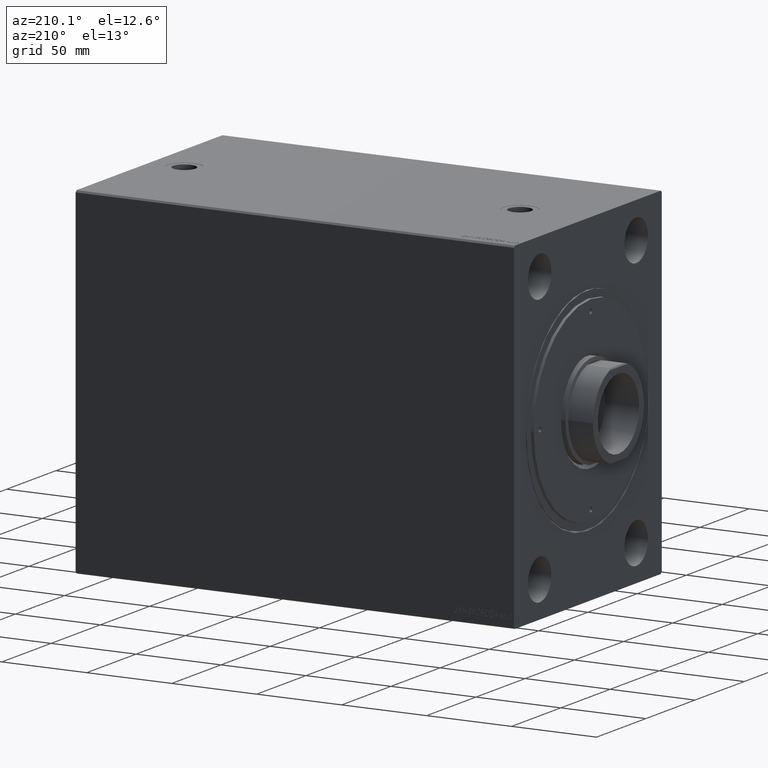
[diagram: clean part render]
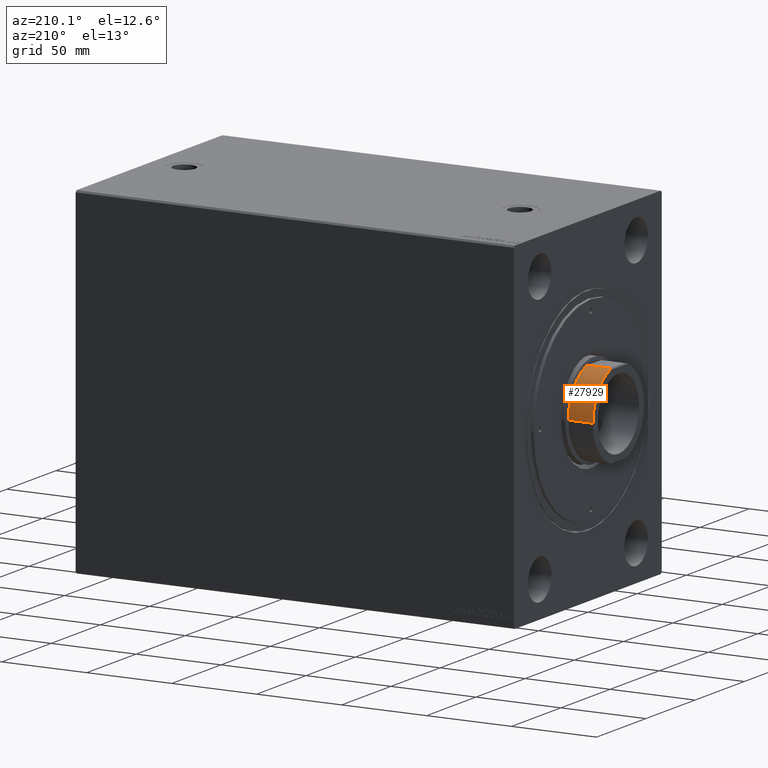
[diagram: same view with one face highlighted and labeled with its STEP entity id]
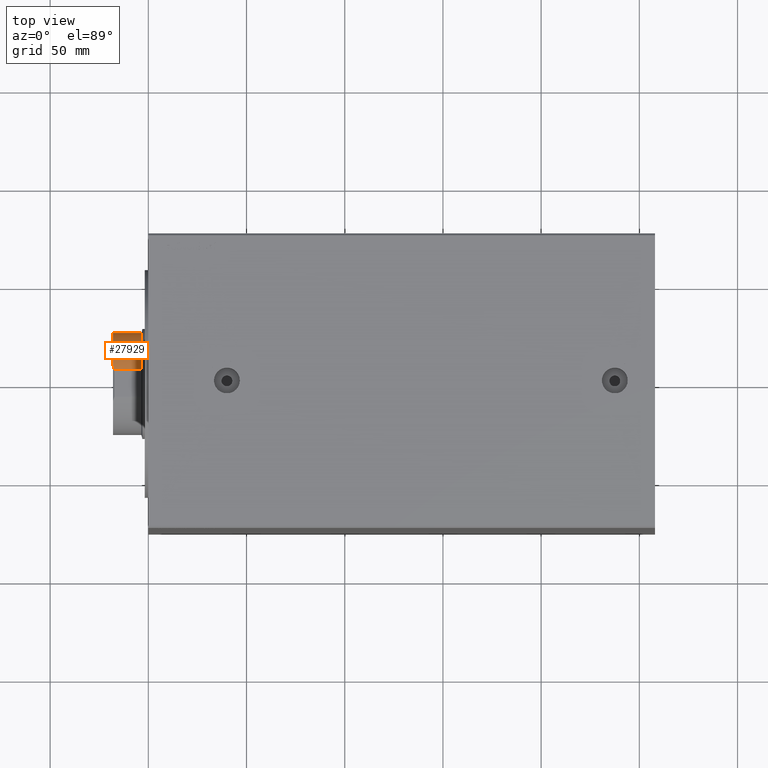
[diagram: same view with one face highlighted and labeled with its STEP entity id]
A machine part, auxiliary view. The second image highlights one B-rep face of the part: STEP entity #27929.
A second angle (top view) of the same face is appended — the face is thin or edge-on in the first view.
In plain terms, the highlighted cylindrical surface (partial cylindrical patch) has radius 25.96 mm, axis along (-1, 0, 0).
Its self-contained STEP definition (entity closure, byte-faithful):
#500 = DIRECTION ( 'NONE',  ( 0.000000000000000000, -1.000000000000000000, 0.000000000000000000 ) ) ;
#1282 = FACE_OUTER_BOUND ( 'NONE', #31531, .T. ) ;
#2404 = EDGE_CURVE ( 'NONE', #22034, #29642, #37133, .T. ) ;
#2987 = CARTESIAN_POINT ( 'NONE',  ( -25.00000000000000000, -6.994397758206214455, 173.0000000000000000 ) ) ;
#5614 = CIRCLE ( 'NONE', #32165, 25.95999999999999375 ) ;
#5811 = CARTESIAN_POINT ( 'NONE',  ( -25.00000000000000000, -6.994397758206214455, 172.2899999999999920 ) ) ;
#5882 = CARTESIAN_POINT ( 'NONE',  ( -24.29000000000001336, -9.160649540289131920, 173.0000000000000000 ) ) ;
#6165 = CIRCLE ( 'NONE', #19037, 25.95999999999999375 ) ;
#6536 = ORIENTED_EDGE ( 'NONE', *, *, #14281, .T. ) ;
#9171 = AXIS2_PLACEMENT_3D ( 'NONE', #18963, #36053, #25946 ) ;
#11070 = EDGE_CURVE ( 'NONE', #28275, #22034, #20696, .T. ) ;
#12397 = CARTESIAN_POINT ( 'NONE',  ( -24.29000000000001336, -9.160649540289131920, 173.0000000000000000 ) ) ;
#14281 = EDGE_CURVE ( 'NONE', #28657, #36217, #29801, .T. ) ;
#15493 = VECTOR ( 'NONE', #27112, 1000.000000000000000 ) ;
#16877 = CARTESIAN_POINT ( 'NONE',  ( -25.00000000000000000, -6.994397758206214455, 172.2899999999999920 ) ) ;
#17538 = CARTESIAN_POINT ( 'NONE',  ( 0.000000000000000000, -2.623210675813166970E-14, 158.5000000000000000 ) ) ;
#18963 = CARTESIAN_POINT ( 'NONE',  ( 0.000000000000000000, -2.863188939531091061E-14, 173.0000000000000000 ) ) ;
#19037 = AXIS2_PLACEMENT_3D ( 'NONE', #17538, #31237, #500 ) ;
#19759 = DIRECTION ( 'NONE',  ( -0.000000000000000000, -1.655022508399474550E-16, 1.000000000000000000 ) ) ;
#20139 = CARTESIAN_POINT ( 'NONE',  ( 0.000000000000000000, -25.96000000000002572, 173.0000000000000000 ) ) ;
#20146 = CARTESIAN_POINT ( 'NONE',  ( 3.304097064099558194E-15, -25.96000000000002217, 158.5000000000000000 ) ) ;
#20261 = DIRECTION ( 'NONE',  ( 0.000000000000000000, 1.655022508399474550E-16, -1.000000000000000000 ) ) ;
#20696 =( BOUNDED_CURVE ( )  B_SPLINE_CURVE ( 3, ( #5882, #30148, #37339, #16877 ),
 .UNSPECIFIED., .F., .F. ) 
 B_SPLINE_CURVE_WITH_KNOTS ( ( 4, 4 ),
 ( 2.780950061814777552, 2.868791760877351216 ),
 .UNSPECIFIED. ) 
 CURVE ( )  GEOMETRIC_REPRESENTATION_ITEM ( )  RATIONAL_B_SPLINE_CURVE ( ( 1.000000000000000000, 0.9993570896854834240, 0.9993570896854834240, 1.000000000000000000 ) ) 
 REPRESENTATION_ITEM ( '' )  );
#22034 = VERTEX_POINT ( 'NONE', #5811 ) ;
#25143 = CARTESIAN_POINT ( 'NONE',  ( 0.000000000000000000, -25.96000000000002217, 173.0000000000000000 ) ) ;
#25946 = DIRECTION ( 'NONE',  ( 0.000000000000000000, -1.000000000000000000, 0.000000000000000000 ) ) ;
#26114 = ORIENTED_EDGE ( 'NONE', *, *, #28432, .F. ) ;
#27112 = DIRECTION ( 'NONE',  ( -0.000000000000000000, -1.655022508399474550E-16, 1.000000000000000000 ) ) ;
#27929 = ADVANCED_FACE ( 'NONE', ( #1282 ), #43021, .T. ) ;
#28275 = VERTEX_POINT ( 'NONE', #12397 ) ;
#28355 = ORIENTED_EDGE ( 'NONE', *, *, #41578, .T. ) ;
#28432 = EDGE_CURVE ( 'NONE', #28275, #36217, #5614, .T. ) ;
#28657 = VERTEX_POINT ( 'NONE', #20146 ) ;
#29642 = VERTEX_POINT ( 'NONE', #34740 ) ;
#29801 = LINE ( 'NONE', #20139, #15493 ) ;
#30148 = CARTESIAN_POINT ( 'NONE',  ( -24.55831528023093924, -8.449195824245833819, 172.7316847197691061 ) ) ;
#30316 = CARTESIAN_POINT ( 'NONE',  ( 0.000000000000000000, -2.863188939531091061E-14, 173.0000000000000000 ) ) ;
#30752 = ORIENTED_EDGE ( 'NONE', *, *, #2404, .T. ) ;
#31237 = DIRECTION ( 'NONE',  ( -0.000000000000000000, -1.655022508399474550E-16, 1.000000000000000000 ) ) ;
#31531 = EDGE_LOOP ( 'NONE', ( #28355, #6536, #26114, #43296, #30752 ) ) ;
#32165 = AXIS2_PLACEMENT_3D ( 'NONE', #30316, #19759, #36843 ) ;
#34740 = CARTESIAN_POINT ( 'NONE',  ( -25.00000000000000000, -6.994397758206211790, 158.4999999999999716 ) ) ;
#36053 = DIRECTION ( 'NONE',  ( -0.000000000000000000, -1.655022508399474550E-16, 1.000000000000000000 ) ) ;
#36217 = VERTEX_POINT ( 'NONE', #25143 ) ;
#36843 = DIRECTION ( 'NONE',  ( 0.000000000000000000, -1.000000000000000000, 0.000000000000000000 ) ) ;
#37133 = LINE ( 'NONE', #2987, #41812 ) ;
#37339 = CARTESIAN_POINT ( 'NONE',  ( -24.79513420022393788, -7.726647363026404314, 172.4948657997761075 ) ) ;
#41578 = EDGE_CURVE ( 'NONE', #29642, #28657, #6165, .T. ) ;
#41812 = VECTOR ( 'NONE', #20261, 1000.000000000000000 ) ;
#43021 = CYLINDRICAL_SURFACE ( 'NONE', #9171, 25.95999999999999730 ) ;
#43296 = ORIENTED_EDGE ( 'NONE', *, *, #11070, .T. ) ;